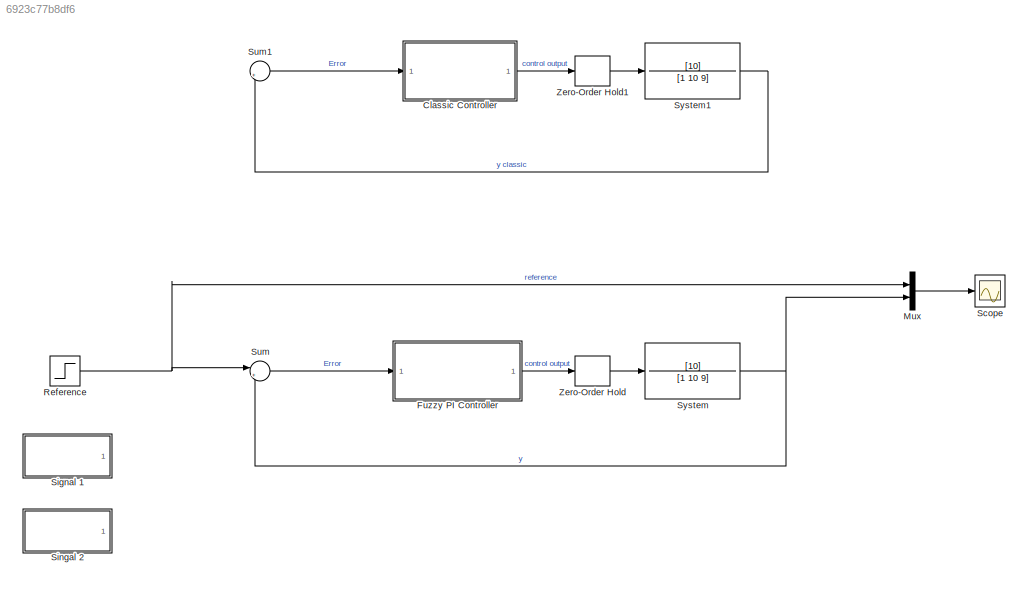
MODEL slx_6923c77b8df6
KIND model
CONFIG AbsTol = auto
CONFIG EnableMultiTasking = on
CONFIG FixedStep = auto
CONFIG MaxStep = 0.01
CONFIG MinStep = auto
CONFIG RelTol = 1e-4
CONFIG SampleTimeConstraint = Unconstrained
CONFIG Solver = VariableStepAuto
CONFIG SolverName = VariableStepAuto
CONFIG StartTime = 0.0
CONFIG StopTime = 6
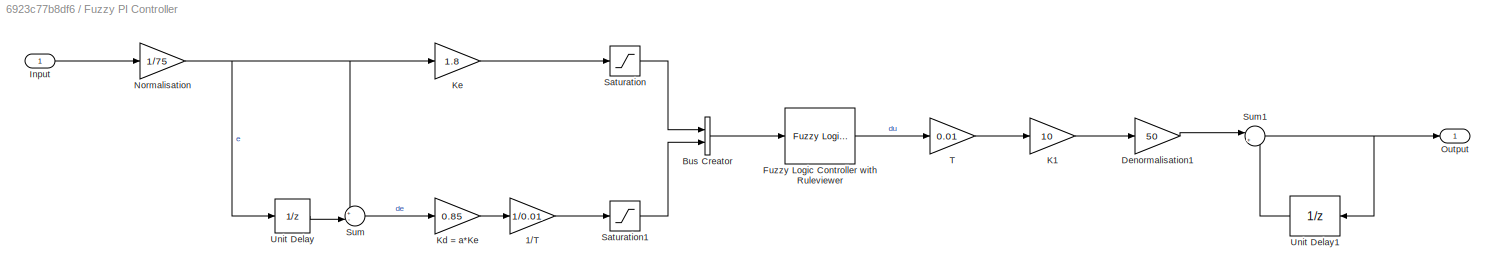
BLOCK [SubSystem] 	Fuzzy PI Controller
  Ports = [1, 1]
  RequestExecContextInheritance = off
BLOCK [Gain] 	Fuzzy PI Controller/1//T
  Gain = 1/0.01
  OutDataTypeStr = Inherit: Inherit via internal rule
  ParamDataTypeStr = Inherit: Inherit via internal rule
  SaturateOnIntegerOverflow = off
BLOCK [BusCreator] 	Fuzzy PI Controller/Bus Creator
  DisplayOption = bar
  InheritFromInputs = on
  Inputs = 2
  Ports = [2, 1]
BLOCK [Gain] 	Fuzzy PI Controller/Denormalisation1
  Gain = 50
  OutDataTypeStr = Inherit: Inherit via internal rule
  ParamDataTypeStr = Inherit: Inherit via internal rule
  SaturateOnIntegerOverflow = off
BLOCK [Reference] 	Fuzzy PI Controller/Fuzzy Logic Controller with Ruleviewer  REF=fuzblock/Fuzzy Logic   (lib defined in mdl_858b3b3e7478)
Controller 
with Ruleviewer
  Ports = [1, 1]
  SourceBlock = fuzblock/Fuzzy Logic \nController \nwith Ruleviewer
  SourceProductBaseCode = FL
  SourceProductName = Fuzzy Logic Toolbox
  SourceType = Fuzzy Inference System
BLOCK [Inport] 	Fuzzy PI Controller/Input
  IconDisplay = Port number
BLOCK [Gain] 	Fuzzy PI Controller/K1
  Gain = 10
  OutDataTypeStr = Inherit: Inherit via internal rule
  ParamDataTypeStr = Inherit: Inherit via internal rule
  SaturateOnIntegerOverflow = off
BLOCK [Gain] 	Fuzzy PI Controller/Kd = a*Ke
  Gain = 0.85
  OutDataTypeStr = Inherit: Inherit via internal rule
  ParamDataTypeStr = Inherit: Inherit via internal rule
  SaturateOnIntegerOverflow = off
BLOCK [Gain] 	Fuzzy PI Controller/Ke
  Gain = 1.8
  OutDataTypeStr = Inherit: Inherit via internal rule
  ParamDataTypeStr = Inherit: Inherit via internal rule
  SaturateOnIntegerOverflow = off
BLOCK [Gain] 	Fuzzy PI Controller/Normalisation
  Gain = 1/75
  OutDataTypeStr = Inherit: Inherit via internal rule
  ParamDataTypeStr = Inherit: Inherit via internal rule
  SaturateOnIntegerOverflow = off
BLOCK [Outport] 	Fuzzy PI Controller/Output
  IconDisplay = Port number
BLOCK [Saturate] 	Fuzzy PI Controller/Saturation
  InputPortMap = u0
  LowerLimit = -1
  Ports = [1, 1]
  UpperLimit = 1
BLOCK [Saturate] 	Fuzzy PI Controller/Saturation1
  InputPortMap = u0
  LowerLimit = -1
  Ports = [1, 1]
  UpperLimit = 1
BLOCK [Sum] 	Fuzzy PI Controller/Sum
  IconShape = round
  InputSameDT = off
  Inputs = +-|
  OutDataTypeStr = Inherit: Inherit via internal rule
  Ports = [2, 1]
  SaturateOnIntegerOverflow = off
BLOCK [Sum] 	Fuzzy PI Controller/Sum1
  IconShape = round
  InputSameDT = off
  Inputs = |++
  OutDataTypeStr = Inherit: Inherit via internal rule
  Ports = [2, 1]
  SaturateOnIntegerOverflow = off
BLOCK [Gain] 	Fuzzy PI Controller/T
  Gain = 0.01
  OutDataTypeStr = Inherit: Inherit via internal rule
  ParamDataTypeStr = Inherit: Inherit via internal rule
  SaturateOnIntegerOverflow = off
BLOCK [UnitDelay] 	Fuzzy PI Controller/Unit Delay
  InputProcessing = Elements as channels (sample based)
  SampleTime = -1
BLOCK [UnitDelay] 	Fuzzy PI Controller/Unit Delay1
  InputProcessing = Elements as channels (sample based)
  SampleTime = -1
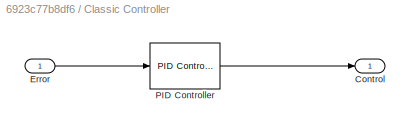
BLOCK [SubSystem] Classic Controller
  Commented = on
  Ports = [1, 1]
  RequestExecContextInheritance = off
BLOCK [Outport] Classic Controller/Control
  IconDisplay = Port number
BLOCK [Inport] Classic Controller/Error
  IconDisplay = Port number
BLOCK [Reference] Classic Controller/PID Controller  REF=simulink/Continuous/PID Controller
  Ports = [1, 1]
  SourceBlock = simulink/Continuous/PID Controller
  SourceProductBaseCode = SL
  SourceProductName = Simulink
  SourceType = PID 1dof
BLOCK [Mux] Mux
  DisplayOption = bar
  Inputs = 2
  Ports = [2, 1]
BLOCK [Step] Reference
  SampleTime = 0.01
  Time = 0
BLOCK [Scope] Scope
  Floating = off
  NumInputPorts = 1
  Ports = [1]
  ScopeSpecificationString = Simulink.scopes.TimeScopeBlockCfg('CurrentConfiguration', extmgr.ConfigurationSet(extmgr.Configuration('Core','General UI',true),extmgr.Configuration('Core','Source UI',true),extmgr.Configuration('Sources','WiredSimulink',true,'DataLogging',true),extmgr.Configuration('Visuals','Time Domain',true,'SerializedDisplays',{struct('MinYLimReal','0','MaxYLimReal','1.1','YLabelReal','','MinYLimMag','0.0000...<+1718ch>
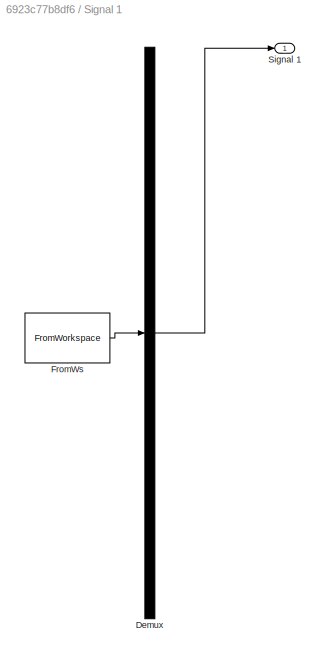
BLOCK [SubSystem] Signal 1
  ClipboardFcn = sigbuilder_block('clipboard');
  CloseFcn = sigbuilder_block('close');
  Commented = on
  ContinueFcn = sigbuilder_block('continue');
  CopyFcn = sigbuilder_block('copy');
  DeleteFcn = sigbuilder_block('delete');
  LoadFcn = sigbuilder_block('load');
  MaskHideContents = on
  ModelCloseFcn = sigbuilder_block('modelClose');
  NameChangeFcn = sigbuilder_block('namechange');
  OpenFcn = sigbuilder_block('open',[830.25 240.75 550.5 399.75 ]);
  PauseFcn = sigbuilder_block('pause');
  Ports = [0, 1]
  PreSaveFcn = sigbuilder_block('preSave');
  RequestExecContextInheritance = off
  StartFcn = sigbuilder_block('start');
  StopFcn = sigbuilder_block('stop');
  Tag = STV Subsys
BLOCK [Demux] Signal 1/Demux
  Outputs = 1
  Ports = [1, 1]
  Tag = STV Demux
BLOCK [FromWorkspace] Signal 1/FromWs
  SampleTime = 0
  Tag = STV FromWs
  VariableName = tuvar
  ZeroCross = on
BLOCK [Outport] Signal 1/Signal 1
  IconDisplay = Port number
  Tag = STV Outport
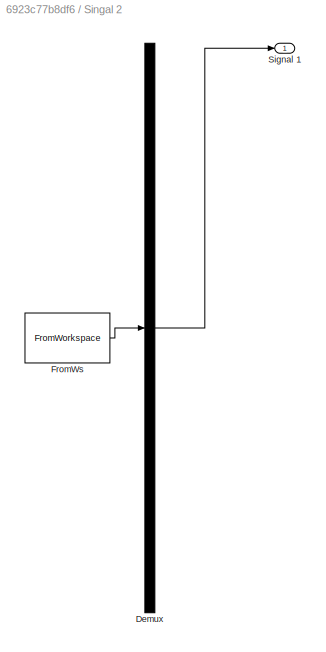
BLOCK [SubSystem] Singal 2
  ClipboardFcn = sigbuilder_block('clipboard');
  CloseFcn = sigbuilder_block('close');
  Commented = on
  ContinueFcn = sigbuilder_block('continue');
  CopyFcn = sigbuilder_block('copy');
  DeleteFcn = sigbuilder_block('delete');
  LoadFcn = sigbuilder_block('load');
  MaskHideContents = on
  ModelCloseFcn = sigbuilder_block('modelClose');
  NameChangeFcn = sigbuilder_block('namechange');
  OpenFcn = sigbuilder_block('open',[858.75 216 550.5 399.75 ]);
  PauseFcn = sigbuilder_block('pause');
  Ports = [0, 1]
  PreSaveFcn = sigbuilder_block('preSave');
  RequestExecContextInheritance = off
  StartFcn = sigbuilder_block('start');
  StopFcn = sigbuilder_block('stop');
  Tag = STV Subsys
BLOCK [Demux] Singal 2/Demux
  Outputs = 1
  Ports = [1, 1]
  Tag = STV Demux
BLOCK [FromWorkspace] Singal 2/FromWs
  SampleTime = 0
  Tag = STV FromWs
  VariableName = tuvar
  ZeroCross = on
BLOCK [Outport] Singal 2/Signal 1
  IconDisplay = Port number
  Tag = STV Outport
BLOCK [Sum] Sum
  IconShape = round
  InputSameDT = off
  Inputs = |+-
  OutDataTypeStr = Inherit: Inherit via internal rule
  Ports = [2, 1]
  SaturateOnIntegerOverflow = off
BLOCK [Sum] Sum1
  Commented = on
  IconShape = round
  InputSameDT = off
  Inputs = |+-
  OutDataTypeStr = Inherit: Inherit via internal rule
  Ports = [2, 1]
  SaturateOnIntegerOverflow = off
BLOCK [TransferFcn] System
  Denominator = [1 10 9]
  Numerator = [10]
BLOCK [TransferFcn] System1
  Commented = on
  Denominator = [1 10 9]
  Numerator = [10]
BLOCK [ZeroOrderHold] Zero-Order Hold
  SampleTime = -1
BLOCK [ZeroOrderHold] Zero-Order Hold1
  Commented = on
  SampleTime = -1
LINE 	Fuzzy PI Controller/1//T:1 -> 	Fuzzy PI Controller/Saturation1:1
LINE 	Fuzzy PI Controller/Bus Creator:1 -> 	Fuzzy PI Controller/Fuzzy Logic Controller with Ruleviewer:1
LINE 	Fuzzy PI Controller/Denormalisation1:1 -> 	Fuzzy PI Controller/Sum1:1
LINE 	Fuzzy PI Controller/Fuzzy Logic Controller with Ruleviewer:1 -> 	Fuzzy PI Controller/T:1
LINE 	Fuzzy PI Controller/Input:1 -> 	Fuzzy PI Controller/Normalisation:1
LINE 	Fuzzy PI Controller/K1:1 -> 	Fuzzy PI Controller/Denormalisation1:1
LINE 	Fuzzy PI Controller/Kd = a*Ke:1 -> 	Fuzzy PI Controller/1//T:1
LINE 	Fuzzy PI Controller/Ke:1 -> 	Fuzzy PI Controller/Saturation:1
NET 	Fuzzy PI Controller/Normalisation:1 -> 	Fuzzy PI Controller/Ke:1, 	Fuzzy PI Controller/Sum:1, 	Fuzzy PI Controller/Unit Delay:1
LINE 	Fuzzy PI Controller/Saturation1:1 -> 	Fuzzy PI Controller/Bus Creator:2
LINE 	Fuzzy PI Controller/Saturation:1 -> 	Fuzzy PI Controller/Bus Creator:1
NET 	Fuzzy PI Controller/Sum1:1 -> 	Fuzzy PI Controller/Output:1, 	Fuzzy PI Controller/Unit Delay1:1
LINE 	Fuzzy PI Controller/Sum:1 -> 	Fuzzy PI Controller/Kd = a*Ke:1
LINE 	Fuzzy PI Controller/T:1 -> 	Fuzzy PI Controller/K1:1
LINE 	Fuzzy PI Controller/Unit Delay1:1 -> 	Fuzzy PI Controller/Sum1:2
LINE 	Fuzzy PI Controller/Unit Delay:1 -> 	Fuzzy PI Controller/Sum:2
LINE 	Fuzzy PI Controller:1 -> Zero-Order Hold:1
LINE Classic Controller/Error:1 -> Classic Controller/PID Controller:1
LINE Classic Controller/PID Controller:1 -> Classic Controller/Control:1
LINE Classic Controller:1 -> Zero-Order Hold1:1
LINE Mux:1 -> Scope:1
NET Reference:1 -> Mux:1, Sum:1
LINE Sum1:1 -> Classic Controller:1
LINE Sum:1 -> 	Fuzzy PI Controller:1
LINE System1:1 -> Sum1:2
NET System:1 -> Mux:2, Sum:2
LINE Zero-Order Hold1:1 -> System1:1
LINE Zero-Order Hold:1 -> System:1
note: NET lines group one-source signal fan-out (src -> all destinations, sorted); 1:1 wires keep LINE
